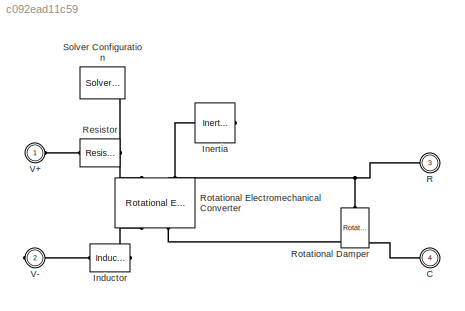
MODEL slx_c092ead11c59
KIND model
CONFIG InitFcn = J = 0.01;\nb = 0.1;\nK = 0.01;\nR = 1;\nL = 0.5;
BLOCK [PMIOPort] C
  Port = 4
  Side = Right
BLOCK [Reference] Inductor  REF=fl_lib/Electrical/Electrical Elements/Inductor
  ClassName = inductor
  ComponentPath = foundation.electrical.elements.inductor
  ComponentVariantNames = inductor
  ComponentVariants = foundation.electrical.elements.inductor
  LocalVarDescs = |i|v|Internal variable for current through inductor term
  LocalVarLogging = [0 0 0]
  LocalVarNames = |i|v|i_L
  Ports = [0, 0, 0, 0, 0, 1, 1]
  SchemaVersion = 1
  SourceBlock = fl_lib/Electrical/Electrical Elements/Inductor
  SourceFile = foundation.electrical.elements.inductor
  SourceType = Inductor
  g = 1e-9
  g_unit = 1/Ohm
  i0 = 0
  i0_unit = A
  i_L_Log = off
  i_Log = off
  l = L
  l_unit = H
  r = 0
  r_unit = Ohm
  v_Log = off
BLOCK [Reference] Inertia  REF=fl_lib/Mechanical/Rotational Elements/Inertia
  ClassName = inertia
  ComponentPath = foundation.mechanical.rotational.inertia
  ComponentVariantNames = inertia
  ComponentVariants = foundation.mechanical.rotational.inertia
  LocalVarDescs = |t
  LocalVarLogging = 0
  LocalVarNames = |t
  Ports = [0, 0, 0, 0, 0, 1]
  SchemaVersion = 1
  SourceBlock = fl_lib/Mechanical/Rotational Elements/Inertia
  SourceFile = foundation.mechanical.rotational.inertia
  SourceType = Inertia
  inertia = J
  inertia_unit = kg*m^2
  initial_velocity = 0
  initial_velocity_unit = rad/s
  t_Log = off
BLOCK [PMIOPort] R
  Port = 3
  Side = Left
BLOCK [Reference] Resistor  REF=fl_lib/Electrical/Electrical Elements/Resistor
  ClassName = resistor
  ComponentPath = foundation.electrical.elements.resistor
  ComponentVariantNames = resistor
  ComponentVariants = foundation.electrical.elements.resistor
  LocalVarDescs = |i|v
  LocalVarLogging = [0 0]
  LocalVarNames = |i|v
  Ports = [0, 0, 0, 0, 0, 1, 1]
  R = R
  R_unit = Ohm
  SchemaVersion = 1
  SourceBlock = fl_lib/Electrical/Electrical Elements/Resistor
  SourceFile = foundation.electrical.elements.resistor
  SourceType = Resistor
  i_Log = off
  v_Log = off
BLOCK [Reference] Rotational Damper  REF=fl_lib/Mechanical/Rotational Elements/Rotational Damper
  ClassName = damper
  ComponentPath = foundation.mechanical.rotational.damper
  ComponentVariantNames = damper
  ComponentVariants = foundation.mechanical.rotational.damper
  D = b
  D_unit = N*m/(rad/s)
  LocalVarDescs = |t|w
  LocalVarLogging = [0 0]
  LocalVarNames = |t|w
  Ports = [0, 0, 0, 0, 0, 1, 1]
  SchemaVersion = 1
  SourceBlock = fl_lib/Mechanical/Rotational Elements/Rotational Damper
  SourceFile = foundation.mechanical.rotational.damper
  SourceType = Rotational Damper
  t_Log = off
  w_Log = off
BLOCK [Reference] Rotational Electromechanical Converter  REF=fl_lib/Electrical/Electrical Elements/Rotational
Electromechanical
Converter
  ClassName = rotational_converter
  ComponentPath = foundation.electrical.elements.rotational_converter
  ComponentVariantNames = rotational_converter
  ComponentVariants = foundation.electrical.elements.rotational_converter
  K = K
  K_unit = V/(rad/s)
  LocalVarDescs = |i|v|t|w
  LocalVarLogging = [0 0 0 0]
  LocalVarNames = |i|v|t|w
  Ports = [0, 0, 0, 0, 0, 2, 2]
  SchemaVersion = 1
  SourceBlock = fl_lib/Electrical/Electrical Elements/Rotational\nElectromechanical\nConverter
  SourceFile = foundation.electrical.elements.rotational_converter
  SourceType = Rotational\nElectromechanical\nConverter
  i_Log = off
  t_Log = off
  v_Log = off
  w_Log = off
BLOCK [Reference] Solver Configuration  REF=nesl_utility/Solver
Configuration
  Accelerate = off
  DelaysMemoryBudget = 1024
  DoDC = off
  DoFixedCost = off
  EnableSwitchedLinearOptims = on
  FrequencyDomain = off
  Harmonics = []
  LeftPortType = input
  LinearAlgebra = Sparse
  LocalSolverChoice = NE_BACKWARD_EULER_ADVANCER
  LocalSolverSampleTime = 0.001
  MaxModeIter = 2
  MaxNonlinIter = 3
  PhysicalDomain = network_engine_domain
  Ports = [0, 0, 0, 0, 0, 0, 1]
  Profile = off
  ResidualTolerance = 1e-09
  RightPortType = generic
  SimulateNoise = off
  SourceBlock = nesl_utility/Solver\nConfiguration
  SourceType = Solver\nConfiguration
  SubClassName = solver
  Tones = []
  UseCCode = off
  UseLocalSampling = off
  UseLocalSolver = off
  UseNewInitialization = off
BLOCK [PMIOPort] V+
  Port = 1
  Side = Left
BLOCK [PMIOPort] V-
  Port = 2
  Side = Right
PNET net1: C:RConn1 -- Rotational Damper:RConn1 -- Rotational Electromechanical Converter:RConn2
PLINE Inductor:LConn1 -- Rotational Electromechanical Converter:RConn1
PLINE Inductor:RConn1 -- V-:RConn1
PNET net2: Inertia:LConn1 -- R:RConn1 -- Rotational Damper:LConn1 -- Rotational Electromechanical Converter:LConn2
PLINE Resistor:LConn1 -- V+:RConn1
PNET net3: Resistor:RConn1 -- Rotational Electromechanical Converter:LConn1 -- Solver Configuration:RConn1
note: PNET lines group multi-terminal physical nets as a canonical sorted terminal list (undirected conserving connections); 2-terminal nets keep the pairwise PLINE form
